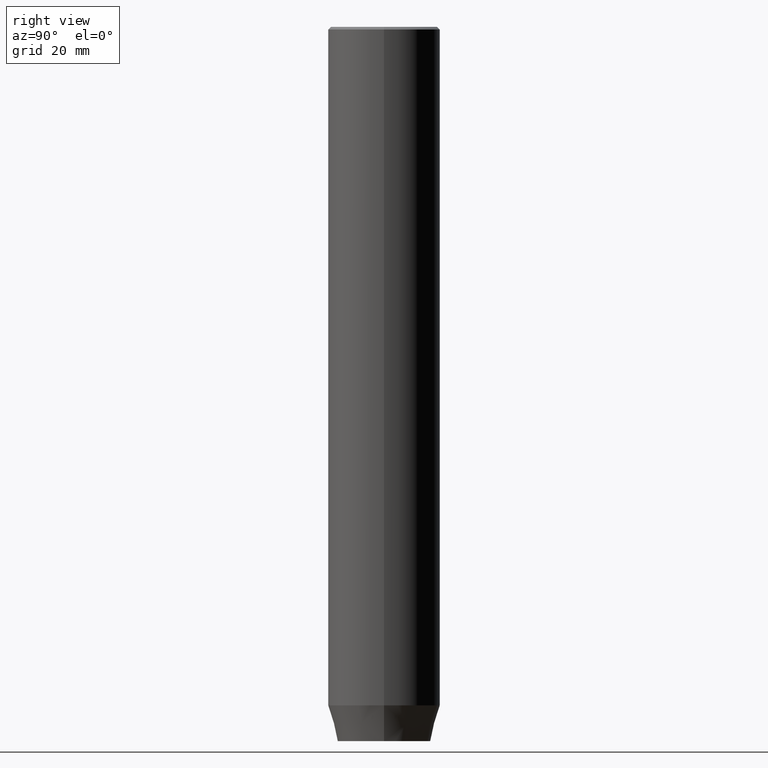
[diagram: clean part render]
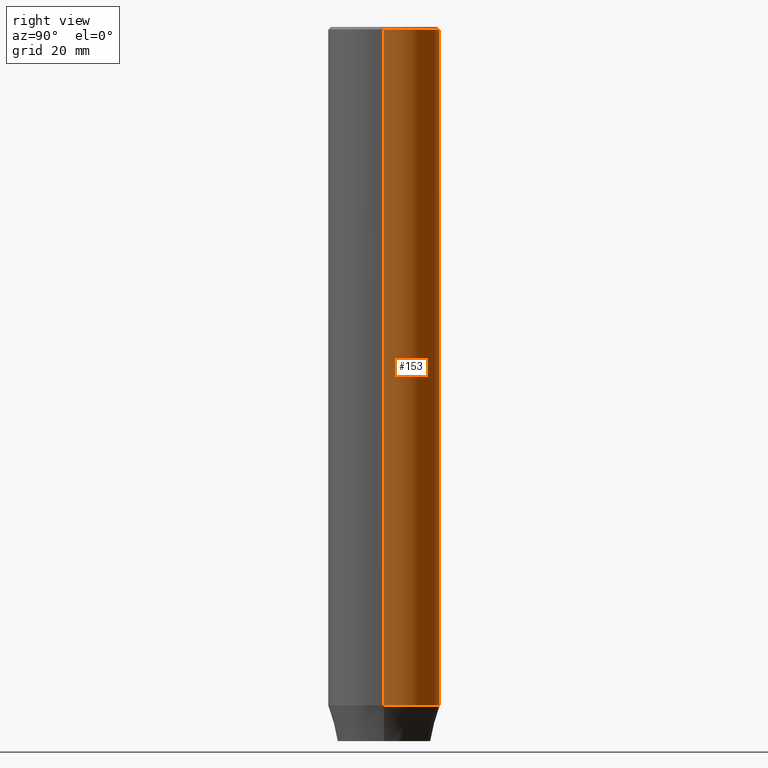
[diagram: same view with one face highlighted and labeled with its STEP entity id]
A machine part, right view. The second image highlights one B-rep face of the part: STEP entity #153.
In plain terms, the highlighted cylindrical surface (partial cylindrical patch) has radius 11 mm, axis along (-0, -0, 1).
Its self-contained STEP definition (entity closure, byte-faithful):
#2 = CARTESIAN_POINT ( 'NONE',  ( 11.00000000000000000, 0.000000000000000000, -0.5000000000000004441 ) ) ;
#14 = VERTEX_POINT ( 'NONE', #2 ) ;
#19 = CARTESIAN_POINT ( 'NONE',  ( 0.000000000000000000, 0.000000000000000000, -133.0000000000000000 ) ) ;
#26 = CARTESIAN_POINT ( 'NONE',  ( 0.000000000000000000, 0.000000000000000000, 0.000000000000000000 ) ) ;
#38 = EDGE_CURVE ( 'NONE', #162, #14, #412, .T. ) ;
#49 = EDGE_CURVE ( 'NONE', #162, #497, #478, .T. ) ;
#63 = DIRECTION ( 'NONE',  ( -0.000000000000000000, -0.000000000000000000, 1.000000000000000000 ) ) ;
#75 = EDGE_CURVE ( 'NONE', #271, #14, #115, .T. ) ;
#77 = ORIENTED_EDGE ( 'NONE', *, *, #87, .T. ) ;
#87 = EDGE_CURVE ( 'NONE', #497, #271, #343, .T. ) ;
#111 = DIRECTION ( 'NONE',  ( -0.000000000000000000, -0.000000000000000000, 1.000000000000000000 ) ) ;
#115 = CIRCLE ( 'NONE', #457, 11.00000000000000000 ) ;
#135 = AXIS2_PLACEMENT_3D ( 'NONE', #19, #139, #293 ) ;
#139 = DIRECTION ( 'NONE',  ( -0.000000000000000000, -0.000000000000000000, 1.000000000000000000 ) ) ;
#147 = CARTESIAN_POINT ( 'NONE',  ( 11.00000000000000000, 0.000000000000000000, -133.0000000000000000 ) ) ;
#148 = DIRECTION ( 'NONE',  ( 1.000000000000000000, 0.000000000000000000, 0.000000000000000000 ) ) ;
#153 = ADVANCED_FACE ( 'NONE', ( #346 ), #196, .T. ) ;
#159 = CARTESIAN_POINT ( 'NONE',  ( -11.00000000000000000, 1.347111479062088405E-15, -133.0000000000000000 ) ) ;
#162 = VERTEX_POINT ( 'NONE', #147 ) ;
#172 = DIRECTION ( 'NONE',  ( -0.000000000000000000, -0.000000000000000000, 1.000000000000000000 ) ) ;
#178 = ORIENTED_EDGE ( 'NONE', *, *, #38, .F. ) ;
#194 = VECTOR ( 'NONE', #111, 1000.000000000000000 ) ;
#196 = CYLINDRICAL_SURFACE ( 'NONE', #399, 11.00000000000000000 ) ;
#218 = EDGE_LOOP ( 'NONE', ( #578, #77, #569, #178 ) ) ;
#224 = CARTESIAN_POINT ( 'NONE',  ( -11.00000000000000000, 1.347111479062088405E-15, -0.5000000000000004441 ) ) ;
#271 = VERTEX_POINT ( 'NONE', #224 ) ;
#293 = DIRECTION ( 'NONE',  ( 1.000000000000000000, 0.000000000000000000, 0.000000000000000000 ) ) ;
#343 = LINE ( 'NONE', #385, #194 ) ;
#346 = FACE_OUTER_BOUND ( 'NONE', #218, .T. ) ;
#348 = VECTOR ( 'NONE', #172, 1000.000000000000000 ) ;
#385 = CARTESIAN_POINT ( 'NONE',  ( -11.00000000000000000, 1.347111479062088405E-15, 0.000000000000000000 ) ) ;
#390 = CARTESIAN_POINT ( 'NONE',  ( 0.000000000000000000, 0.000000000000000000, -0.5000000000000004441 ) ) ;
#399 = AXIS2_PLACEMENT_3D ( 'NONE', #26, #63, #575 ) ;
#412 = LINE ( 'NONE', #586, #348 ) ;
#457 = AXIS2_PLACEMENT_3D ( 'NONE', #390, #535, #148 ) ;
#478 = CIRCLE ( 'NONE', #135, 11.00000000000000000 ) ;
#497 = VERTEX_POINT ( 'NONE', #159 ) ;
#535 = DIRECTION ( 'NONE',  ( 0.000000000000000000, 0.000000000000000000, -1.000000000000000000 ) ) ;
#569 = ORIENTED_EDGE ( 'NONE', *, *, #75, .T. ) ;
#575 = DIRECTION ( 'NONE',  ( 1.000000000000000000, 0.000000000000000000, 0.000000000000000000 ) ) ;
#578 = ORIENTED_EDGE ( 'NONE', *, *, #49, .T. ) ;
#586 = CARTESIAN_POINT ( 'NONE',  ( 11.00000000000000000, 0.000000000000000000, 0.000000000000000000 ) ) ;